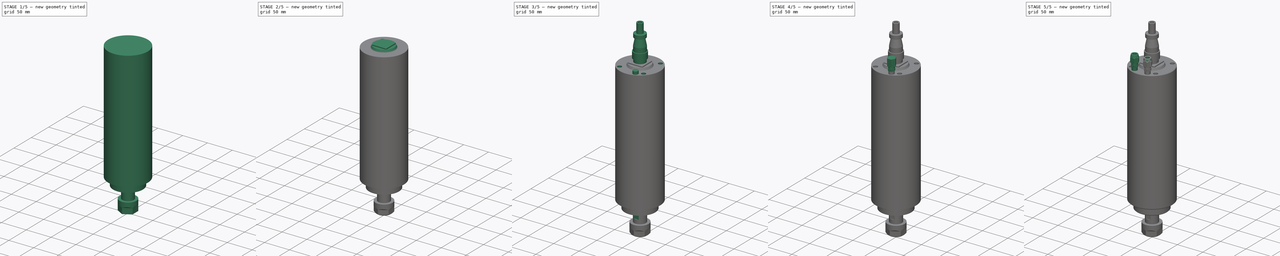
[diagram: build sequence overview — one tinted view per stage of 5, left to right]
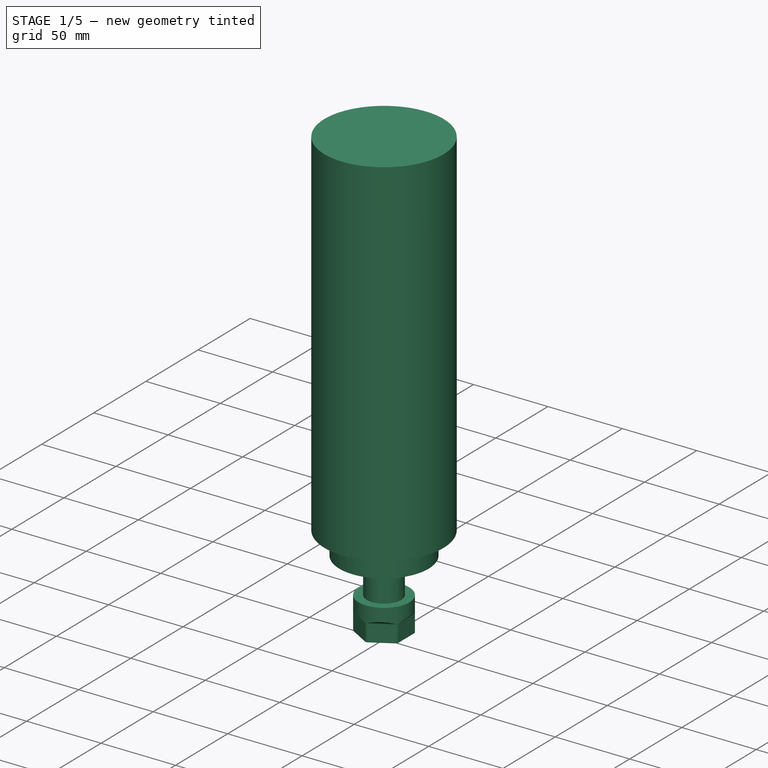
[diagram: stage 1 of 5 — iso view after this stage's code; geometry added in this stage tinted green]
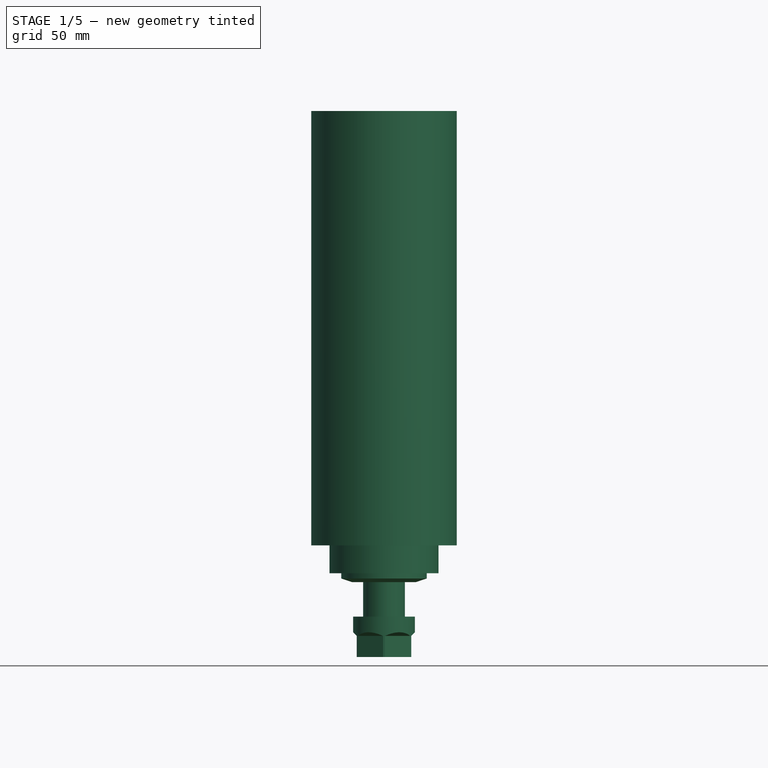
[diagram: stage 1 of 5 — front view after this stage's code; geometry added in this stage tinted green]
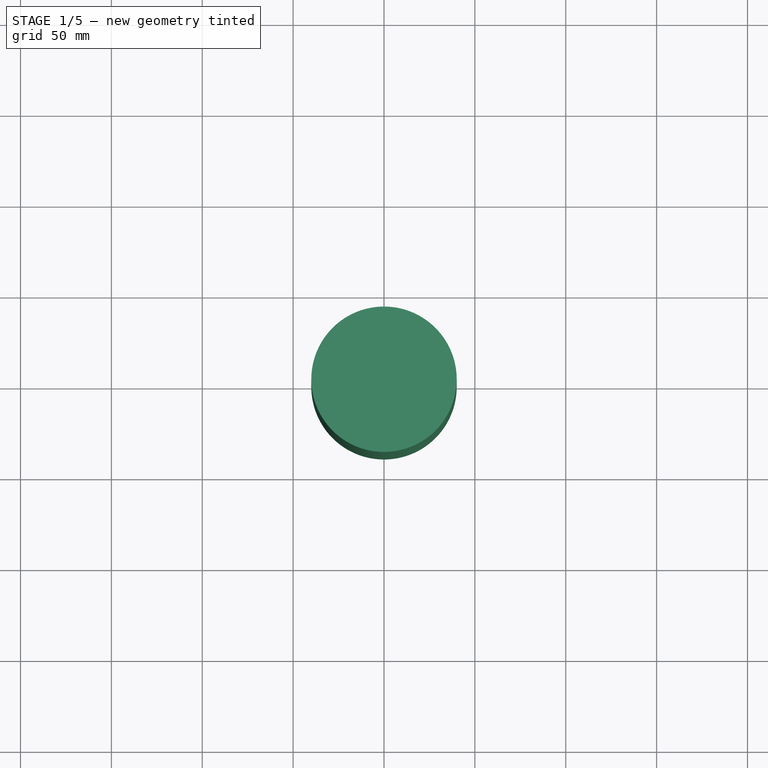
[diagram: stage 1 of 5 — top view after this stage's code; geometry added in this stage tinted green]
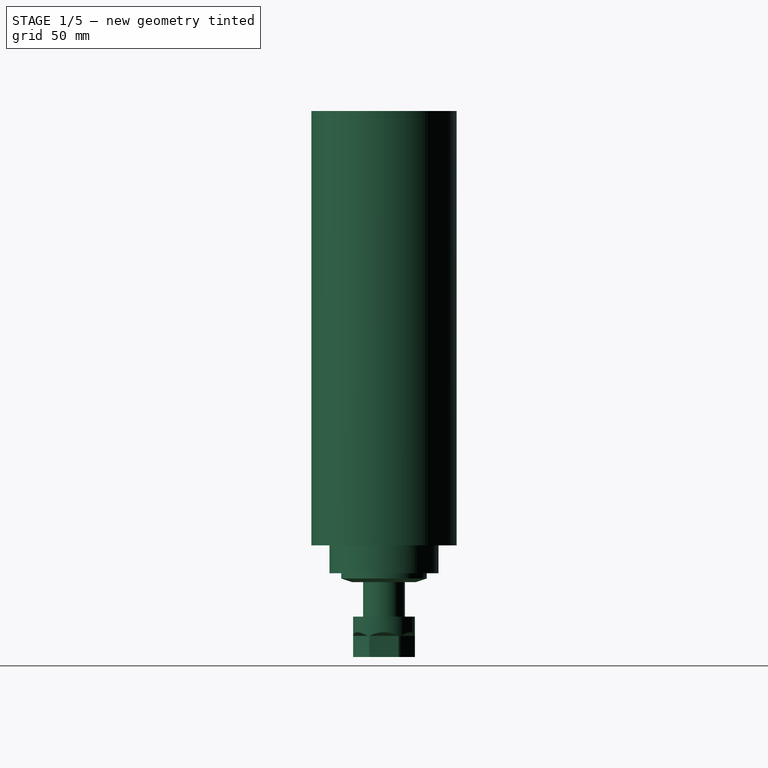
[diagram: stage 1 of 5 — right view after this stage's code; geometry added in this stage tinted green]
FCSTD DOCUMENT  (FreeCAD 2022.111R30764 (Git))
Label: Spindle
License: All rights reserved
LicenseURL: http://en.wikipedia.org/wiki/All_rights_reserved
objects: Sketcher::SketchObject×14, PartDesign::Pad×6, PartDesign::Pocket×4, PartDesign::Revolution×2, PartDesign::Chamfer×2, PartDesign::Groove×2, PartDesign::PolarPattern×1, PartDesign::Plane×1, PartDesign::Mirrored×1, PartDesign::Body×1
note: 70 computed .brp shape members not serialized (recipe doc carries the construction recipe); baked Part::Feature solids carry a one-line shape summary decoded from their .brp

FEATURE [Sketcher::SketchObject] Sketch
  FullyConstrained = false
  MapMode = 5
  Placement = pos=(0,0,0) rot=(1,0,0;1.5708rad)
  Support = -> [XZ_Plane]
  TreeRank = 0
  sketch-geometry (19):
    g0: LineSegment StartX=0 StartY=0 StartZ=0 EndX=-40 EndY=0 EndZ=0
    g1: LineSegment StartX=-40 StartY=0 StartZ=0 EndX=-40 EndY=-239 EndZ=0
    g2: LineSegment StartX=0 StartY=-239 StartZ=0 EndX=0 EndY=0 EndZ=0
    g3: LineSegment StartX=-30 StartY=-239 StartZ=0 EndX=-30 EndY=-254.3 EndZ=0
    g4: LineSegment StartX=-30 StartY=-254.3 StartZ=0 EndX=-23.5 EndY=-254.3 EndZ=0
    g5: LineSegment StartX=-23.5 StartY=-254.3 StartZ=0 EndX=-23.5 EndY=-259.2 EndZ=0
    g6: LineSegment StartX=-23.5 StartY=-259.2 StartZ=0 EndX=-11.5 EndY=-259.2 EndZ=0
    g7: LineSegment StartX=-11.5 StartY=-259.2 StartZ=0 EndX=-11.5 EndY=-278.2 EndZ=0
    g8: LineSegment [constr] StartX=-11.5 StartY=-278.2 StartZ=0 EndX=0 EndY=-278.2 EndZ=0
    g9: LineSegment StartX=0 StartY=-278.2 StartZ=0 EndX=0 EndY=-239 EndZ=0
    g10: LineSegment StartX=-40 StartY=-239 StartZ=0 EndX=-30 EndY=-239 EndZ=0
    g11: LineSegment [constr] StartX=0 StartY=-239 StartZ=0 EndX=-30 EndY=-239 EndZ=0
    g12: LineSegment StartX=-11.5 StartY=-278.2 StartZ=0 EndX=-17 EndY=-278.2 EndZ=0
    g13: LineSegment StartX=-17 StartY=-278.2 StartZ=0 EndX=-17 EndY=-300.4 EndZ=0
    g14: LineSegment [constr] StartX=-17 StartY=-300.4 StartZ=0 EndX=0 EndY=-300.4 EndZ=0
    g15: LineSegment StartX=-17 StartY=-300.4 StartZ=0 EndX=-7.8 EndY=-300.4 EndZ=0
    g16: LineSegment StartX=-7.8 StartY=-300.4 StartZ=0 EndX=-7.8 EndY=-292.978 EndZ=0
    g17: LineSegment StartX=-7.8 StartY=-292.978 StartZ=0 EndX=0 EndY=-292.978 EndZ=0
    g18: LineSegment StartX=0 StartY=-278.2 StartZ=0 EndX=0 EndY=-292.978 EndZ=0
  constraints (54):
    c: Coincident(g0,g1)
    c: Coincident(g2,g0)
    c: Horizontal(g0)
    c: Vertical(g1)
    c: Vertical(g2)
    c: PointOnObject(g0,g-2)
    c: DistanceY(g2,g2) = 239
    c: DistanceX(g0,g0) = 40
    c: Vertical(g3)
    c: Coincident(g4,g3)
    c: Horizontal(g4)
    c: Coincident(g5,g4)
    c: Vertical(g5)
    c: Horizontal(g6)
    c: Vertical(g7)
    c: PointOnObject(g8,g-2)
    c: Horizontal(g8)
    c: Coincident(g9,g8)
    c: Coincident(g9,g2)
    c: Coincident(g10,g1)
    c: Coincident(g10,g3)
    c: Horizontal(g10)
    c: PointOnObject(g0,g-1)
    c: Coincident(g7,g8)
    c: Coincident(g6,g7)
    c: Coincident(g5,g6)
    c: DistanceY(g3,g3) = 15.3
    c: DistanceY(g5,g5) = 4.9
    c: Coincident(g11,g2)
    c: Coincident(g11,g3)
    c: Horizontal(g11)
    c: DistanceX(g8,g8) = 11.5
    c: DistanceY(g7,g7) = 19
    c: DistanceX(g11,g11) = 30
    c: Distance(g4,g9) = 23.5
    c: Coincident(g12,g7)
    c: Horizontal(g12)
    c: Coincident(g13,g12)
    c: Vertical(g13)
    c: PointOnObject(g14,g-2)
    c: Horizontal(g14)
    c: Coincident(g13,g14)
    c: DistanceY(g13,g13) = 22.2
    c: DistanceX(g14,g14) = 17
    c: Coincident(g15,g13)
    c: PointOnObject(g15,g14)
    c: Coincident(g16,g15)
    c: Vertical(g16)
    c: Coincident(g17,g16)
    c: Horizontal(g17)
    c: Coincident(g18,g9)
    c: Coincident(g18,g17)
    c: Vertical(g18)
    c: DistanceX(g17,g17) = 7.8
FEATURE [PartDesign::Revolution] Revolution
  AddSubType = 0
  Angle = 360
  Axis = (0,-2e-16,1)
  Base = (0,0,0)
  ClaimChildren = false
  Fit = 0
  FitJoin = 0
  InnerFit = 0
  InnerFitJoin = 0
  NewSolid = false
  Placement = pos=(0,0,0) rot=(1,0,0;1.5708rad)
  Profile = -> Sketch
  ReferenceAxis = -> Sketch [V_Axis]
  Suppress = false
  TreeRank = 0
  _ProfileBasedVersion = 0
FEATURE [PartDesign::Chamfer] Chamfer
  AddSubType = 0
  Angle = 45
  Base = -> Revolution [Edge8]
  BaseFeature = -> Revolution
  ChamferType = 1
  FlipDirection = false
  NewSolid = false
  Placement = pos=(0,0,0) rot=(1,0,0;1.5708rad)
  Size = 2
  Size2 = 6
  SupportTransform = false
  Suppress = false
  TreeRank = 0
FEATURE [Sketcher::SketchObject] Sketch001
  ExternalGeometry = -> [Chamfer]
  FullyConstrained = true
  MapMode = 5
  Placement = pos=(0,0,0) rot=(1,0,0;1.5708rad)
  Support = -> [XZ_Plane]
  TreeRank = 0
  sketch-geometry (4):
    g0: LineSegment StartX=-15 StartY=-300.4 StartZ=0 EndX=-15 EndY=-288.8 EndZ=0
    g1: LineSegment StartX=-15 StartY=-288.8 StartZ=0 EndX=-20 EndY=-283.8 EndZ=0
    g2: LineSegment StartX=-20 StartY=-283.8 StartZ=0 EndX=-20 EndY=-300.4 EndZ=0
    g3: LineSegment StartX=-20 StartY=-300.4 StartZ=0 EndX=-15 EndY=-300.4 EndZ=0
  constraints (12):
    c: Vertical(g0)
    c: PointOnObject(g0,g-3)
    c: Coincident(g1,g0)
    c: Coincident(g2,g1)
    c: Vertical(g2)
    c: Coincident(g3,g2)
    c: Coincident(g3,g0)
    c: Horizontal(g3)
    c: Angle(g1,g0) = 2.35619
    c: DistanceY(g0,g0) = 11.6
    c: DistanceX(g3,g3) = 5
    c: DistanceX(g-2,g0) = -15
FEATURE [PartDesign::Pocket] Pocket
  AddSubType = 1
  BaseFeature = -> Chamfer
  CheckUpToFaceLimits = true
  ClaimChildren = false
  Fit = 0
  FitJoin = 0
  InnerFit = 0
  InnerFitJoin = 0
  InnerTaperAngle = 0
  InnerTaperAngleRev = 0
  Length = 100
  Length2 = 100
  NewSolid = false
  Placement = pos=(0,0,0) rot=(1,0,0;1.5708rad)
  Profile = -> Sketch001
  Suppress = false
  TreeRank = 0
  Type = 4
  _ProfileBasedVersion = 0
  _Version = 0
FEATURE [PartDesign::PolarPattern] PolarPattern
  AddSubType = 0
  Angle = 360
  Axis = -> Sketch001 [V_Axis]
  BaseFeature = -> Pocket
  CopyShape = true
  NewSolid = false
  Occurrences = 6
  OriginalSubs = -> [Pocket]
  Originals = -> [Pocket]
  ParallelTransform = true
  Placement = pos=(0,0,0) rot=(1,0,0;1.5708rad)
  SubTransform = true
  Suppress = false
  TreeRank = 0
  _Version = 0
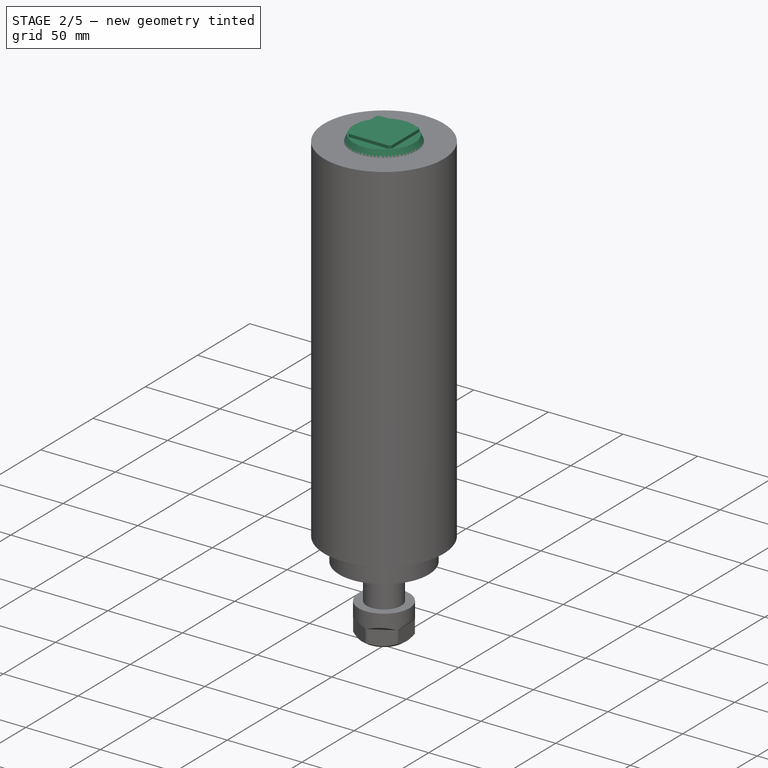
[diagram: stage 2 of 5 — iso view after this stage's code; geometry added in this stage tinted green]
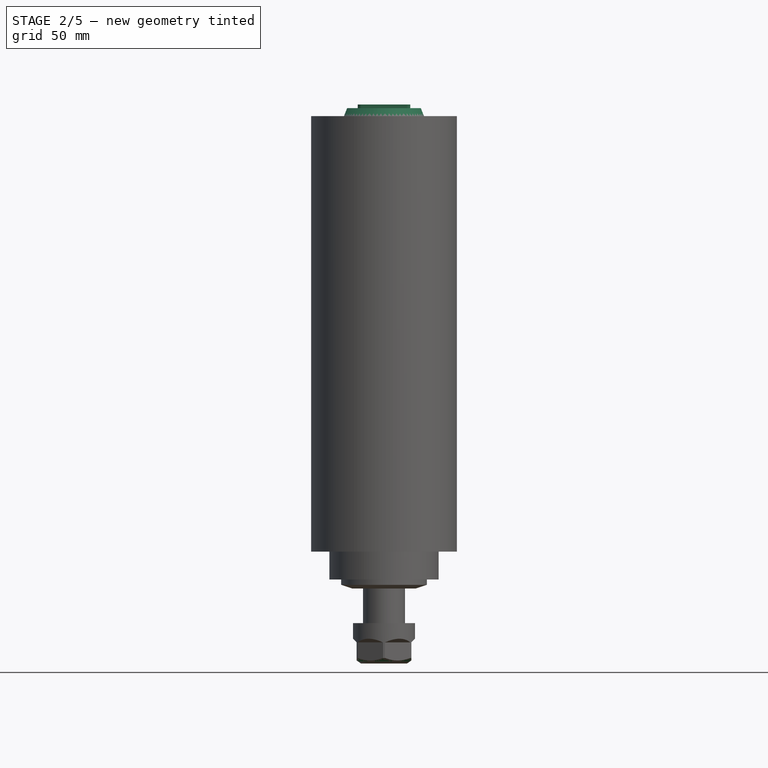
[diagram: stage 2 of 5 — front view after this stage's code; geometry added in this stage tinted green]
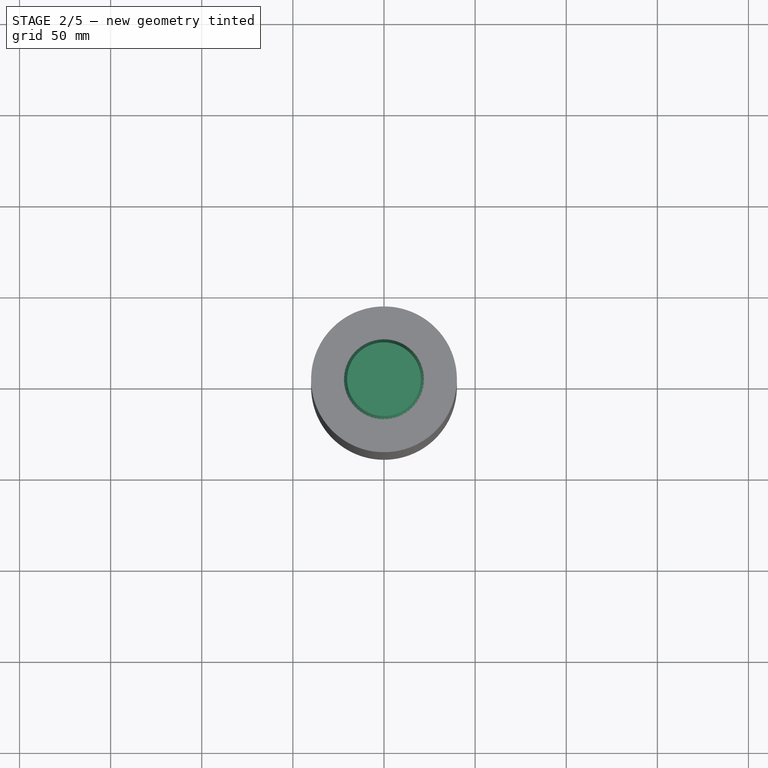
[diagram: stage 2 of 5 — top view after this stage's code; geometry added in this stage tinted green]
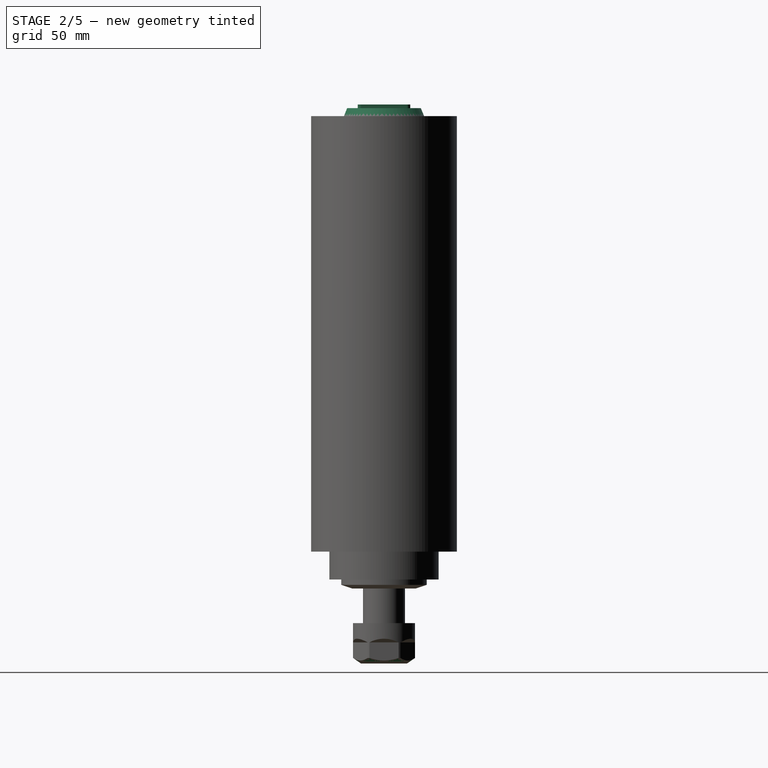
[diagram: stage 2 of 5 — right view after this stage's code; geometry added in this stage tinted green]
FEATURE [Sketcher::SketchObject] Sketch002
  FullyConstrained = false
  MapMode = 5
  Placement = pos=(0,0,0) rot=(1,0,0;1.5708rad)
  Support = -> [XZ_Plane]
  TreeRank = 0
  sketch-geometry (3):
    g0: LineSegment StartX=-11.9303 StartY=-300.872 StartZ=0 EndX=-17.331 EndY=-297.109 EndZ=0
    g1: LineSegment StartX=-17.331 StartY=-297.109 StartZ=0 EndX=-17.331 EndY=-300.872 EndZ=0
    g2: LineSegment StartX=-17.331 StartY=-300.872 StartZ=0 EndX=-11.9303 EndY=-300.872 EndZ=0
  constraints (5):
    c: Coincident(g1,g0)
    c: Vertical(g1)
    c: Horizontal(g2)
    c: Coincident(g1,g2)
    c: Coincident(g0,g2)
FEATURE [PartDesign::Groove] Groove
  AddSubType = 1
  Angle = 360
  Axis = (0,-2e-16,1)
  Base = (0,0,0)
  BaseFeature = -> PolarPattern
  ClaimChildren = false
  Fit = 0
  FitJoin = 0
  InnerFit = 0
  InnerFitJoin = 0
  NewSolid = false
  Placement = pos=(0,0,0) rot=(1,0,0;1.5708rad)
  Profile = -> Sketch002
  ReferenceAxis = -> Sketch002 [V_Axis]
  Reversed = true
  Suppress = false
  TreeRank = 0
  _ProfileBasedVersion = 0
FEATURE [Sketcher::SketchObject] Sketch003
  FullyConstrained = true
  MapMode = 5
  Placement = pos=(0,0,0) rot=(0,0,1;3.14159rad)
  Support = -> [Groove]
  TreeRank = 1
  sketch-geometry (1):
    g0: Circle CenterX=0 CenterY=0 CenterZ=0 NormalX=0 NormalY=0 NormalZ=1 AngleXU=0 Radius=22
  constraints (2):
    c: Coincident(g-1,g0)
    c: Diameter(g0) = 44
FEATURE [PartDesign::Pad] Pad
  AddSubType = 0
  AlongSketchNormal = false
  BaseFeature = -> Groove
  CheckUpToFaceLimits = true
  ClaimChildren = false
  Direction = (0,0,1)
  Fit = 0
  FitJoin = 0
  InnerFit = 0
  InnerFitJoin = 0
  InnerTaperAngle = 0
  InnerTaperAngleRev = 0
  Length = 4.4
  Length2 = 100
  Linearize = true
  NewSolid = false
  Placement = pos=(0,0,0) rot=(1,0,0;1.5708rad)
  Profile = -> Sketch003
  Suppress = false
  TaperAngle = -22
  TreeRank = 2
  Type = 0
  UsePipeForDraft = true
  _ProfileBasedVersion = 1
FEATURE [Sketcher::SketchObject] Sketch004
  FullyConstrained = true
  MapMode = 5
  Placement = pos=(0,1e-15,4.4) rot=(0,0,1;3.14159rad)
  Support = -> [Pad]
  TreeRank = 3
  sketch-geometry (10):
    g0: ArcOfCircle CenterX=-12.4 CenterY=12.4 CenterZ=0 NormalX=0 NormalY=0 NormalZ=1 AngleXU=0 Radius=2 StartAngle=1.5708 EndAngle=3.14159
    g1: LineSegment StartX=-12.4 StartY=14.4 StartZ=0 EndX=12.4 EndY=14.4 EndZ=0
    g2: ArcOfCircle CenterX=12.4 CenterY=12.4 CenterZ=0 NormalX=0 NormalY=0 NormalZ=1 AngleXU=0 Radius=2 StartAngle=4e-16 EndAngle=1.5708
    g3: LineSegment StartX=14.4 StartY=12.4 StartZ=0 EndX=14.4 EndY=-12.4 EndZ=0
    g4: ArcOfCircle CenterX=12.4 CenterY=-12.4 CenterZ=0 NormalX=0 NormalY=0 NormalZ=1 AngleXU=0 Radius=2 StartAngle=4.71239 EndAngle=6.28319
    g5: LineSegment StartX=12.4 StartY=-14.4 StartZ=0 EndX=-12.4 EndY=-14.4 EndZ=0
    g6: ArcOfCircle CenterX=-12.4 CenterY=-12.4 CenterZ=0 NormalX=0 NormalY=0 NormalZ=1 AngleXU=0 Radius=2 StartAngle=3.14159 EndAngle=4.71239
    g7: LineSegment StartX=-14.4 StartY=-12.4 StartZ=0 EndX=-14.4 EndY=12.4 EndZ=0
    g8: GeomPoint [constr] X=-14.4 Y=14.4 Z=0
    g9: GeomPoint [constr] X=14.4 Y=-14.4 Z=0
  constraints (23):
    c: Tangent(g0,g1) = 1.5708
    c: Tangent(g1,g2) = 1.5708
    c: Tangent(g2,g3) = 1.5708
    c: Tangent(g3,g4) = 1.5708
    c: Tangent(g4,g5) = 1.5708
    c: Tangent(g5,g6) = 1.5708
    c: Tangent(g6,g7) = 1.5708
    c: Tangent(g7,g0) = 1.5708
    c: Horizontal(g1)
    c: Horizontal(g5)
    c: Vertical(g3)
    c: Vertical(g7)
    c: Equal(g0,g2)
    c: Equal(g2,g4)
    c: Equal(g4,g6)
    c: PointOnObject(g8,g1)
    c: PointOnObject(g8,g7)
    c: PointOnObject(g9,g3)
    c: PointOnObject(g9,g5)
    c: Radius(g0) = 2
    c: Symmetric(g2,g6,g-1)
    c: DistanceX(g0,g2) = 28.8
    c: Equal(g7,g1)
FEATURE [PartDesign::Pad] Pad001
  AddSubType = 0
  AlongSketchNormal = false
  BaseFeature = -> Pad
  CheckUpToFaceLimits = true
  ClaimChildren = false
  Direction = (0,0,1)
  Fit = 0
  FitJoin = 0
  InnerFit = 0
  InnerFitJoin = 0
  InnerTaperAngle = 0
  InnerTaperAngleRev = 0
  Length = 2
  Length2 = 100
  Linearize = true
  NewSolid = false
  Placement = pos=(0,0,0) rot=(1,0,0;1.5708rad)
  Profile = -> Sketch004
  Suppress = false
  TreeRank = 4
  Type = 0
  _ProfileBasedVersion = 1
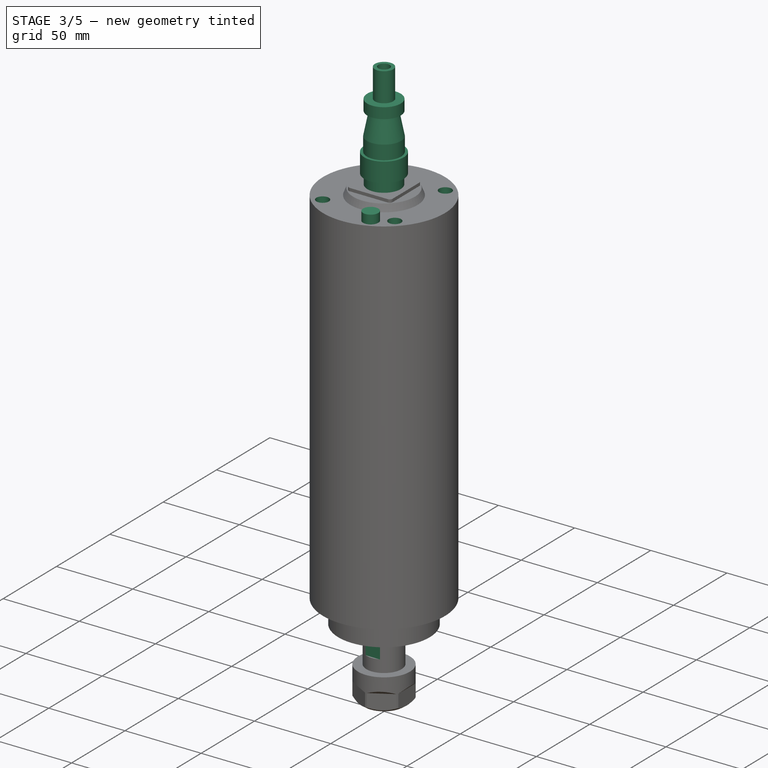
[diagram: stage 3 of 5 — iso view after this stage's code; geometry added in this stage tinted green]
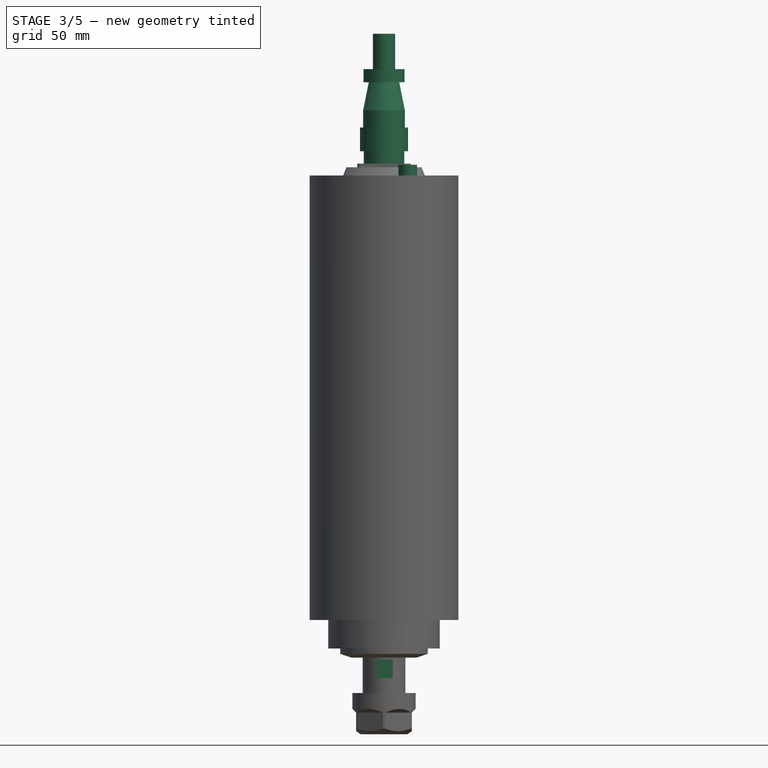
[diagram: stage 3 of 5 — front view after this stage's code; geometry added in this stage tinted green]
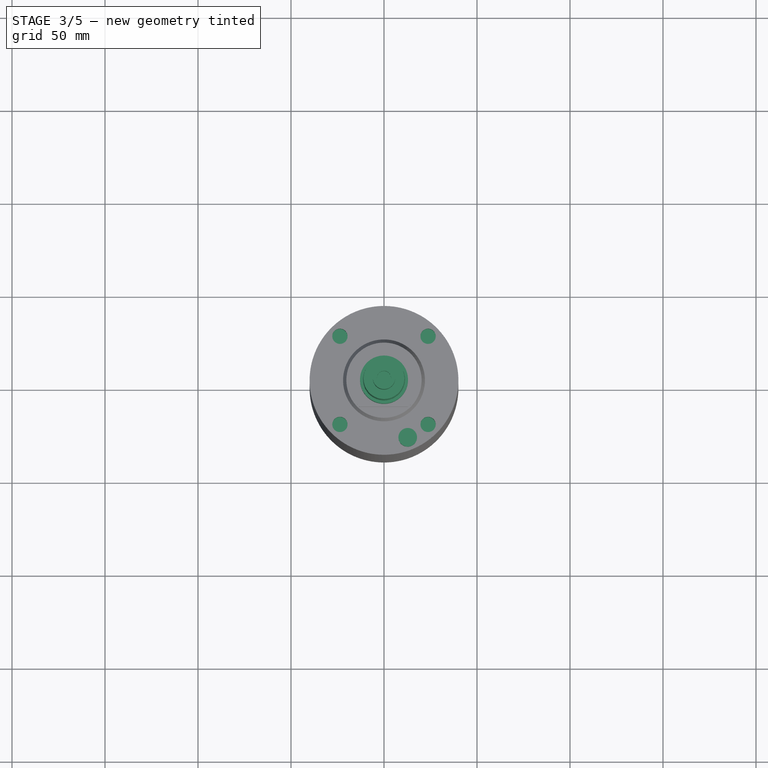
[diagram: stage 3 of 5 — top view after this stage's code; geometry added in this stage tinted green]
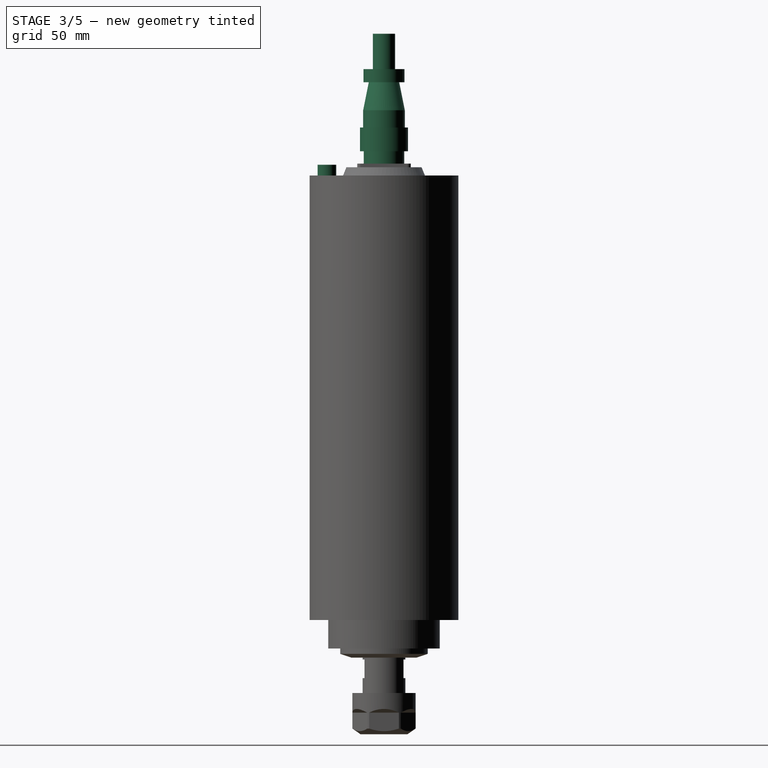
[diagram: stage 3 of 5 — right view after this stage's code; geometry added in this stage tinted green]
FEATURE [Sketcher::SketchObject] Sketch005
  ExternalGeometry = -> [Pad001]
  FullyConstrained = true
  MapMode = 5
  Placement = pos=(0,0,0) rot=(1,0,0;1.5708rad)
  Support = -> [XZ_Plane]
  TreeRank = 5
  sketch-geometry (15):
    g0: LineSegment StartX=0 StartY=6.4 StartZ=0 EndX=-10.9 EndY=6.4 EndZ=0
    g1: LineSegment StartX=-10.9 StartY=6.4 StartZ=0 EndX=-10.9 EndY=13 EndZ=0
    g2: LineSegment StartX=-10.9 StartY=13 StartZ=0 EndX=-12.9 EndY=13 EndZ=0
    g3: LineSegment StartX=-12.9 StartY=13 StartZ=0 EndX=-12.9 EndY=25.8 EndZ=0
    g4: LineSegment StartX=-12.9 StartY=25.8 StartZ=0 EndX=-11.2 EndY=25.8 EndZ=0
    g5: LineSegment StartX=-11.2 StartY=25.8 StartZ=0 EndX=-11.2 EndY=35.1 EndZ=0
    g6: LineSegment StartX=-11.2 StartY=35.1 StartZ=0 EndX=-8.2 EndY=50.1 EndZ=0
    g7: LineSegment StartX=-8.2 StartY=50.1 StartZ=0 EndX=-11 EndY=50.1 EndZ=0
    g8: LineSegment StartX=-11 StartY=50.1 StartZ=0 EndX=-11 EndY=57.2 EndZ=0
    g9: LineSegment StartX=-11 StartY=57.2 StartZ=0 EndX=-6 EndY=57.2 EndZ=0
    g10: LineSegment StartX=-6 StartY=57.2 StartZ=0 EndX=-6 EndY=76.2 EndZ=0
    g11: LineSegment StartX=-6 StartY=76.2 StartZ=0 EndX=-3.8 EndY=76.2 EndZ=0
    g12: LineSegment StartX=-3.8 StartY=76.2 StartZ=0 EndX=-3.8 EndY=67.6 EndZ=0
    g13: LineSegment StartX=-3.8 StartY=67.6 StartZ=0 EndX=0 EndY=67.6 EndZ=0
    g14: LineSegment StartX=0 StartY=67.6 StartZ=0 EndX=0 EndY=6.4 EndZ=0
  constraints (45):
    c: PointOnObject(g0,g-2)
    c: Horizontal(g0)
    c: Coincident(g1,g0)
    c: Vertical(g1)
    c: Coincident(g2,g1)
    c: Horizontal(g2)
    c: Coincident(g3,g2)
    c: Vertical(g3)
    c: Horizontal(g4)
    c: Coincident(g5,g4)
    c: Vertical(g5)
    c: Coincident(g6,g5)
    c: Coincident(g7,g6)
    c: Horizontal(g7)
    c: Coincident(g8,g7)
    c: Vertical(g8)
    c: Coincident(g9,g8)
    c: Horizontal(g9)
    c: Coincident(g10,g9)
    c: Vertical(g10)
    c: Horizontal(g11)
    c: Vertical(g12)
    c: Coincident(g13,g12)
    c: PointOnObject(g13,g-2)
    c: Horizontal(g13)
    c: Coincident(g4,g3)
    c: DistanceY(g1,g1) = 6.6
    c: DistanceY(g3,g3) = 12.8
    c: DistanceX(g0,g0) = 10.9
    c: DistanceX(g2,g0) = 12.9
    c: DistanceY(g5,g5) = 9.3
    c: DistanceX(g6,g0) = 8.2
    c: DistanceY(g5,g6) = 15
    c: DistanceX(g7,g0) = 11
    c: DistanceY(g8,g8) = 7.1
    c: DistanceY(g10,g10) = 19
    c: Coincident(g10,g11)
    c: Coincident(g11,g12)
    c: DistanceX(g10,g13) = 6
    c: DistanceX(g13,g13) = 3.8
    c: DistanceY(g12,g12) = 8.6
    c: DistanceX(g4,g0) = 11.2
    c: Coincident(g14,g0)
    c: Coincident(g13,g14)
    c: PointOnObject(g0,g-3)
FEATURE [PartDesign::Revolution] Revolution001
  AddSubType = 0
  Angle = 360
  Axis = (-3e-16,3e-16,1)
  Base = (0,0,0)
  BaseFeature = -> Pad001
  ClaimChildren = false
  Fit = 0
  FitJoin = 0
  InnerFit = 0
  InnerFitJoin = 0
  Linearize = true
  NewSolid = false
  Placement = pos=(0,0,0) rot=(1,0,0;1.5708rad)
  Profile = -> Sketch005
  ReferenceAxis = -> Z_Axis
  Suppress = false
  TreeRank = 6
  _ProfileBasedVersion = 1
FEATURE [Sketcher::SketchObject] Sketch006
  ExternalGeometry = -> [Revolution001]
  FullyConstrained = true
  MapMode = 5
  Placement = pos=(0,0,0) rot=(0.57735,0.57735,0.57735;2.0944rad)
  Support = -> [YZ_Plane]
  TreeRank = 7
  sketch-geometry (8):
    g0: LineSegment StartX=-20.5 StartY=-260.2 StartZ=0 EndX=-10.5 EndY=-260.2 EndZ=0
    g1: LineSegment StartX=-10.5 StartY=-260.2 StartZ=0 EndX=-10.5 EndY=-270.2 EndZ=0
    g2: LineSegment StartX=-10.5 StartY=-270.2 StartZ=0 EndX=-20.5 EndY=-270.2 EndZ=0
    g3: LineSegment StartX=-20.5 StartY=-270.2 StartZ=0 EndX=-20.5 EndY=-260.2 EndZ=0
    g4: LineSegment StartX=20.5 StartY=-260.2 StartZ=0 EndX=10.5 EndY=-260.2 EndZ=0
    g5: LineSegment StartX=10.5 StartY=-260.2 StartZ=0 EndX=10.5 EndY=-270.2 EndZ=0
    g6: LineSegment StartX=10.5 StartY=-270.2 StartZ=0 EndX=20.5 EndY=-270.2 EndZ=0
    g7: LineSegment StartX=20.5 StartY=-270.2 StartZ=0 EndX=20.5 EndY=-260.2 EndZ=0
  constraints (20):
    c: Coincident(g0,g1)
    c: Coincident(g1,g2)
    c: Coincident(g2,g3)
    c: Coincident(g3,g0)
    c: Horizontal(g0)
    c: Horizontal(g2)
    c: Vertical(g1)
    c: Vertical(g3)
    c: DistanceX(g0,g-1) = 10.5
    c: DistanceX(g0,g0) = 10
    c: DistanceY(g3,g3) = 10
    c: Coincident(g4,g5)
    c: Coincident(g5,g6)
    c: Coincident(g6,g7)
    c: Coincident(g7,g4)
    c: Symmetric(g0,g4,g-2)
    c: Symmetric(g1,g5,g-2)
    c: Symmetric(g0,g4,g-2)
    c: Symmetric(g2,g6,g-2)
    c: DistanceY(g0,g-3) = 1
FEATURE [PartDesign::Pocket] Pocket001
  AddSubType = 1
  BaseFeature = -> Revolution001
  CheckUpToFaceLimits = true
  ClaimChildren = false
  Fit = 0
  FitJoin = 0
  InnerFit = 0
  InnerFitJoin = 0
  InnerTaperAngle = 0
  InnerTaperAngleRev = 0
  Length = 32
  Length2 = 100
  Linearize = true
  Midplane = true
  NewSolid = false
  Placement = pos=(0,0,0) rot=(1,0,0;1.5708rad)
  Profile = -> Sketch006
  Suppress = false
  TreeRank = 8
  Type = 0
  _ProfileBasedVersion = 1
  _Version = 1
FEATURE [Sketcher::SketchObject] Sketch007
  FullyConstrained = true
  MapMode = 5
  Placement = pos=(0,0,0) rot=(0,0,1;3.14159rad)
  Support = -> [Pocket001]
  TreeRank = 9
  sketch-geometry (9):
    g0: LineSegment [constr] StartX=23.7 StartY=-23.7 StartZ=0 EndX=23.7 EndY=23.7 EndZ=0
    g1: LineSegment [constr] StartX=23.7 StartY=23.7 StartZ=0 EndX=-23.7 EndY=23.7 EndZ=0
    g2: LineSegment [constr] StartX=-23.7 StartY=23.7 StartZ=0 EndX=-23.7 EndY=-23.7 EndZ=0
    g3: LineSegment [constr] StartX=-23.7 StartY=-23.7 StartZ=0 EndX=23.7 EndY=-23.7 EndZ=0
    g4: GeomPoint [constr] X=0 Y=0 Z=0
    g5: Circle CenterX=-23.7 CenterY=23.7 CenterZ=0 NormalX=0 NormalY=0 NormalZ=1 AngleXU=0 Radius=4.1
    g6: Circle CenterX=23.7 CenterY=23.7 CenterZ=0 NormalX=0 NormalY=0 NormalZ=1 AngleXU=0 Radius=4.1
    g7: Circle CenterX=23.7 CenterY=-23.7 CenterZ=0 NormalX=0 NormalY=0 NormalZ=1 AngleXU=0 Radius=4.1
    g8: Circle CenterX=-23.7 CenterY=-23.7 CenterZ=0 NormalX=0 NormalY=0 NormalZ=1 AngleXU=0 Radius=4.1
  constraints (20):
    c: Coincident(g0,g1)
    c: Coincident(g1,g2)
    c: Coincident(g2,g3)
    c: Coincident(g3,g0)
    c: Horizontal(g1)
    c: Horizontal(g3)
    c: Vertical(g0)
    c: Vertical(g2)
    c: Symmetric(g1,g0,g4)
    c: Coincident(g4,g-1)
    c: Equal(g1,g2)
    c: DistanceX(g1,g1) = 47.4
    c: Coincident(g5,g1)
    c: Coincident(g6,g0)
    c: Coincident(g7,g0)
    c: Coincident(g8,g2)
    c: Equal(g8,g7)
    c: Equal(g7,g6)
    c: Equal(g6,g5)
    c: Diameter(g5) = 8.2
FEATURE [PartDesign::Pocket] Pocket002
  AddSubType = 1
  BaseFeature = -> Pocket001
  CheckUpToFaceLimits = true
  ClaimChildren = false
  Fit = 0
  FitJoin = 0
  InnerFit = 0
  InnerFitJoin = 0
  InnerTaperAngle = 0
  InnerTaperAngleRev = 0
  Length = 10
  Length2 = 100
  Linearize = true
  NewSolid = false
  Placement = pos=(0,0,0) rot=(1,0,0;1.5708rad)
  Profile = -> Sketch007
  Suppress = false
  TreeRank = 10
  Type = 0
  _ProfileBasedVersion = 1
  _Version = 1
FEATURE [Sketcher::SketchObject] Sketch008
  FullyConstrained = true
  MapMode = 5
  Placement = pos=(0,0,0) rot=(0,0,1;3.14159rad)
  Support = -> [Pocket002]
  TreeRank = 11
  sketch-geometry (1):
    g0: Circle CenterX=-12.75 CenterY=30.7 CenterZ=0 NormalX=0 NormalY=0 NormalZ=1 AngleXU=0 Radius=5
  constraints (3):
    c: Diameter(g0) = 10
    c: DistanceX(g0,g-1) = 12.75
    c: DistanceY(g-1,g0) = 30.7
FEATURE [PartDesign::Pad] Pad002
  AddSubType = 0
  AlongSketchNormal = false
  BaseFeature = -> Pocket002
  CheckUpToFaceLimits = true
  ClaimChildren = false
  Direction = (0,0,1)
  Fit = 0
  FitJoin = 0
  InnerFit = 0
  InnerFitJoin = 0
  InnerTaperAngle = 0
  InnerTaperAngleRev = 0
  Length = 5.8
  Length2 = 100
  Linearize = true
  NewSolid = false
  Placement = pos=(0,0,0) rot=(1,0,0;1.5708rad)
  Profile = -> Sketch008
  Suppress = false
  TreeRank = 12
  Type = 0
  _ProfileBasedVersion = 1
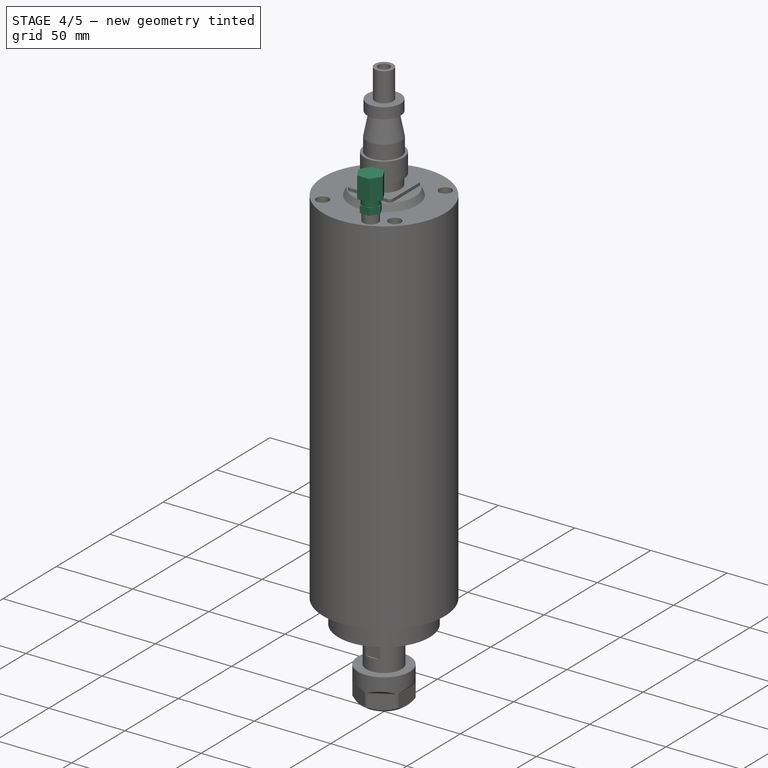
[diagram: stage 4 of 5 — iso view after this stage's code; geometry added in this stage tinted green]
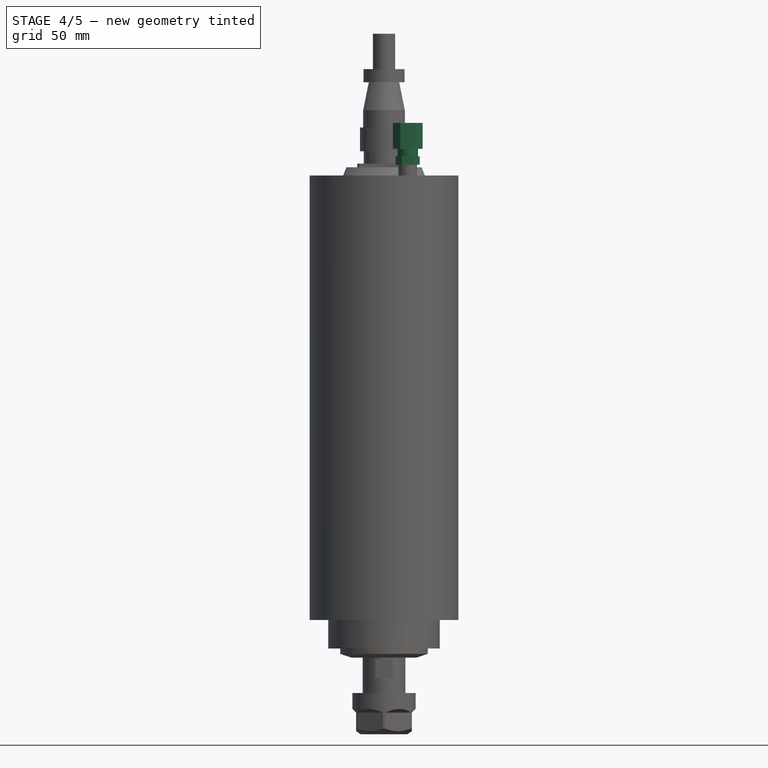
[diagram: stage 4 of 5 — front view after this stage's code; geometry added in this stage tinted green]
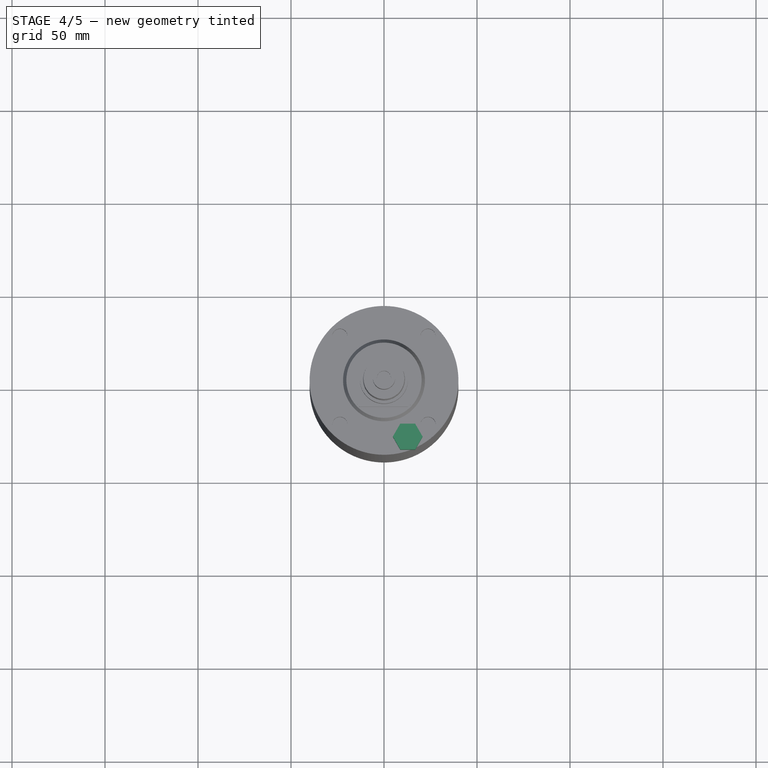
[diagram: stage 4 of 5 — top view after this stage's code; geometry added in this stage tinted green]
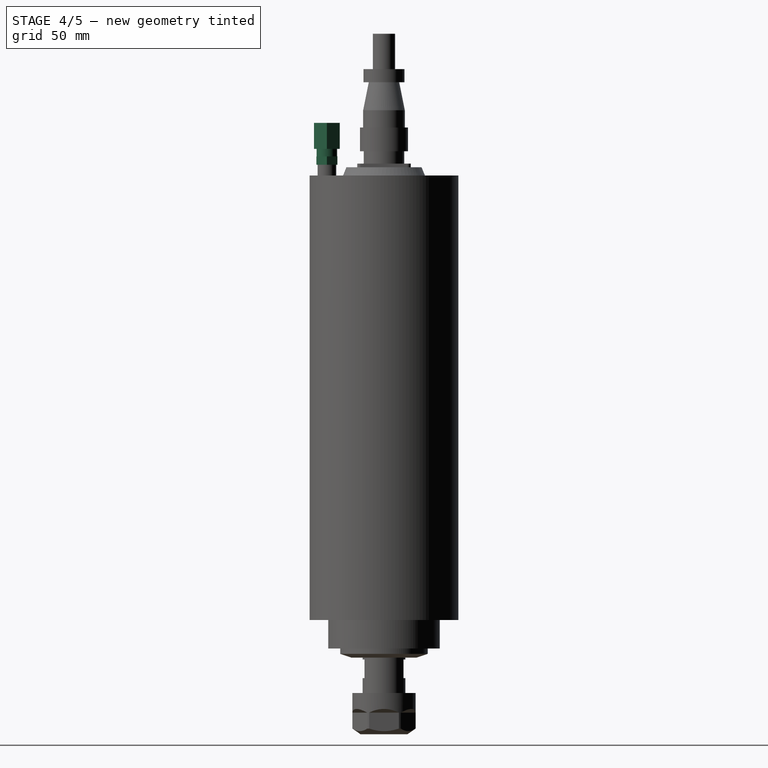
[diagram: stage 4 of 5 — right view after this stage's code; geometry added in this stage tinted green]
FEATURE [Sketcher::SketchObject] Sketch009
  ExternalGeometry = -> [Pad002]
  FullyConstrained = true
  MapMode = 5
  Placement = pos=(0,0,5.8) rot=(0,0,1;3.14159rad)
  Support = -> [Pad002]
  TreeRank = 13
  sketch-geometry (7):
    g0: LineSegment StartX=-9.5 StartY=36.3292 StartZ=0 EndX=-16 EndY=36.3292 EndZ=0
    g1: LineSegment StartX=-16 StartY=36.3292 StartZ=0 EndX=-19.25 EndY=30.7 EndZ=0
    g2: LineSegment StartX=-19.25 StartY=30.7 StartZ=0 EndX=-16 EndY=25.0708 EndZ=0
    g3: LineSegment StartX=-16 StartY=25.0708 StartZ=0 EndX=-9.5 EndY=25.0708 EndZ=0
    g4: LineSegment StartX=-9.5 StartY=25.0708 StartZ=0 EndX=-6.25 EndY=30.7 EndZ=0
    g5: LineSegment StartX=-6.25 StartY=30.7 StartZ=0 EndX=-9.5 EndY=36.3292 EndZ=0
    g6: Circle [constr] CenterX=-12.75 CenterY=30.7 CenterZ=0 NormalX=0 NormalY=0 NormalZ=1 AngleXU=0 Radius=6.5
  constraints (16):
    c: Coincident(g0,g1)
    c: Coincident(g1,g2)
    c: Coincident(g2,g3)
    c: Coincident(g3,g4)
    c: Coincident(g4,g5)
    c: Coincident(g5,g0)
    c: Equal(g0, g1-g5) x5
    c: PointOnObject(g0,g6)
    c: PointOnObject(g1,g6)
    c: PointOnObject(g2,g6)
    c: PointOnObject(g3,g6)
    c: PointOnObject(g4,g6)
    c: PointOnObject(g5,g6)
    c: Coincident(g6,g-3)
    c: Horizontal(g0)
    c: Diameter(g6) = 13
FEATURE [PartDesign::Pad] Pad003
  AddSubType = 0
  AlongSketchNormal = false
  BaseFeature = -> Pad002
  CheckUpToFaceLimits = true
  ClaimChildren = false
  Direction = (0,0,1)
  Fit = 0
  FitJoin = 0
  InnerFit = 0
  InnerFitJoin = 0
  InnerTaperAngle = 0
  InnerTaperAngleRev = 0
  Length = 4.5
  Length2 = 100
  Linearize = true
  NewSolid = false
  Placement = pos=(0,0,0) rot=(1,0,0;1.5708rad)
  Profile = -> Sketch009
  Suppress = false
  TreeRank = 14
  Type = 0
  _ProfileBasedVersion = 1
FEATURE [Sketcher::SketchObject] Sketch010
  ExternalGeometry = -> [Pad003]
  FullyConstrained = true
  MapMode = 5
  Placement = pos=(0,0,10.3) rot=(0,0,1;3.14159rad)
  Support = -> [Pad003]
  TreeRank = 15
  sketch-geometry (1):
    g0: Circle CenterX=-12.75 CenterY=30.7 CenterZ=0 NormalX=0 NormalY=0 NormalZ=1 AngleXU=0 Radius=5.5
  constraints (2):
    c: Coincident(g0,g-3)
    c: Diameter(g0) = 11
FEATURE [PartDesign::Pad] Pad004
  AddSubType = 0
  AlongSketchNormal = false
  BaseFeature = -> Pad003
  CheckUpToFaceLimits = true
  ClaimChildren = false
  Direction = (0,0,1)
  Fit = 0
  FitJoin = 0
  InnerFit = 0
  InnerFitJoin = 0
  InnerTaperAngle = 0
  InnerTaperAngleRev = 0
  Length = 4
  Length2 = 100
  Linearize = true
  NewSolid = false
  Placement = pos=(0,0,0) rot=(1,0,0;1.5708rad)
  Profile = -> Sketch010
  Suppress = false
  TreeRank = 16
  Type = 0
  _ProfileBasedVersion = 1
FEATURE [Sketcher::SketchObject] Sketch011
  ExternalGeometry = -> [Pad004]
  FullyConstrained = true
  MapMode = 5
  Placement = pos=(0,0,14.3) rot=(0,0,1;3.14159rad)
  Support = -> [Pad004]
  TreeRank = 17
  sketch-geometry (7):
    g0: LineSegment StartX=-8.75 StartY=37.6282 StartZ=0 EndX=-16.75 EndY=37.6282 EndZ=0
    g1: LineSegment StartX=-16.75 StartY=37.6282 StartZ=0 EndX=-20.75 EndY=30.7 EndZ=0
    g2: LineSegment StartX=-20.75 StartY=30.7 StartZ=0 EndX=-16.75 EndY=23.7718 EndZ=0
    g3: LineSegment StartX=-16.75 StartY=23.7718 StartZ=0 EndX=-8.75 EndY=23.7718 EndZ=0
    g4: LineSegment StartX=-8.75 StartY=23.7718 StartZ=0 EndX=-4.75 EndY=30.7 EndZ=0
    g5: LineSegment StartX=-4.75 StartY=30.7 StartZ=0 EndX=-8.75 EndY=37.6282 EndZ=0
    g6: Circle [constr] CenterX=-12.75 CenterY=30.7 CenterZ=0 NormalX=0 NormalY=0 NormalZ=1 AngleXU=0 Radius=8
  constraints (16):
    c: Coincident(g0,g1)
    c: Coincident(g1,g2)
    c: Coincident(g2,g3)
    c: Coincident(g3,g4)
    c: Coincident(g4,g5)
    c: Coincident(g5,g0)
    c: Equal(g0, g1-g5) x5
    c: PointOnObject(g0,g6)
    c: PointOnObject(g1,g6)
    c: PointOnObject(g2,g6)
    c: PointOnObject(g3,g6)
    c: PointOnObject(g4,g6)
    c: PointOnObject(g5,g6)
    c: Coincident(g6,g-3)
    c: Diameter(g6) = 16
    c: Horizontal(g0)
FEATURE [PartDesign::Pad] Pad005
  AddSubType = 0
  AlongSketchNormal = false
  BaseFeature = -> Pad004
  CheckUpToFaceLimits = true
  ClaimChildren = false
  Direction = (0,0,1)
  Fit = 0
  FitJoin = 0
  InnerFit = 0
  InnerFitJoin = 0
  InnerTaperAngle = 0
  InnerTaperAngleRev = 0
  Length = 14
  Length2 = 100
  Linearize = true
  NewSolid = false
  Placement = pos=(0,0,0) rot=(1,0,0;1.5708rad)
  Profile = -> Sketch011
  Suppress = false
  TreeRank = 18
  Type = 0
  _ProfileBasedVersion = 1
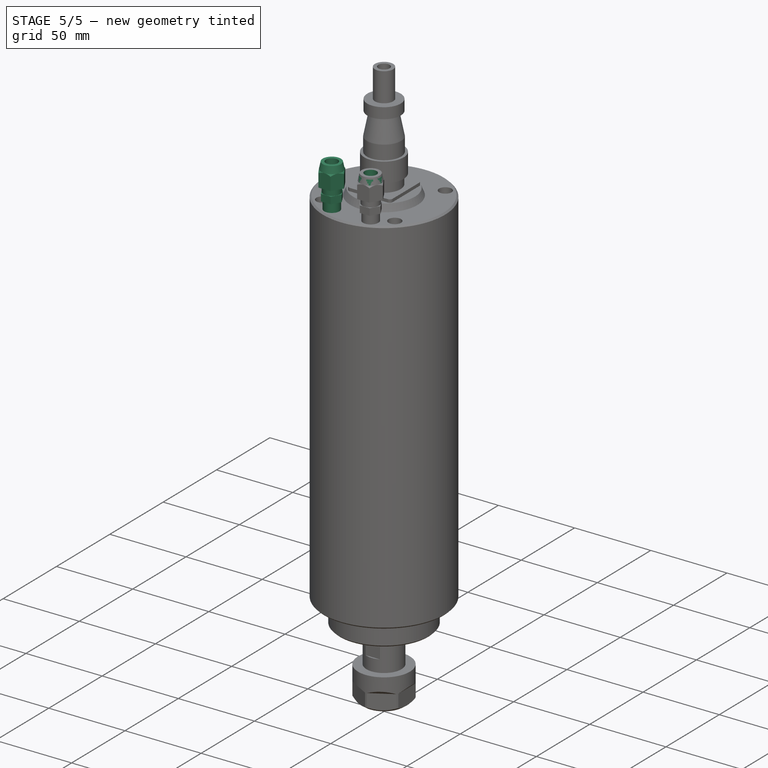
[diagram: stage 5 of 5 — iso view after this stage's code; geometry added in this stage tinted green]
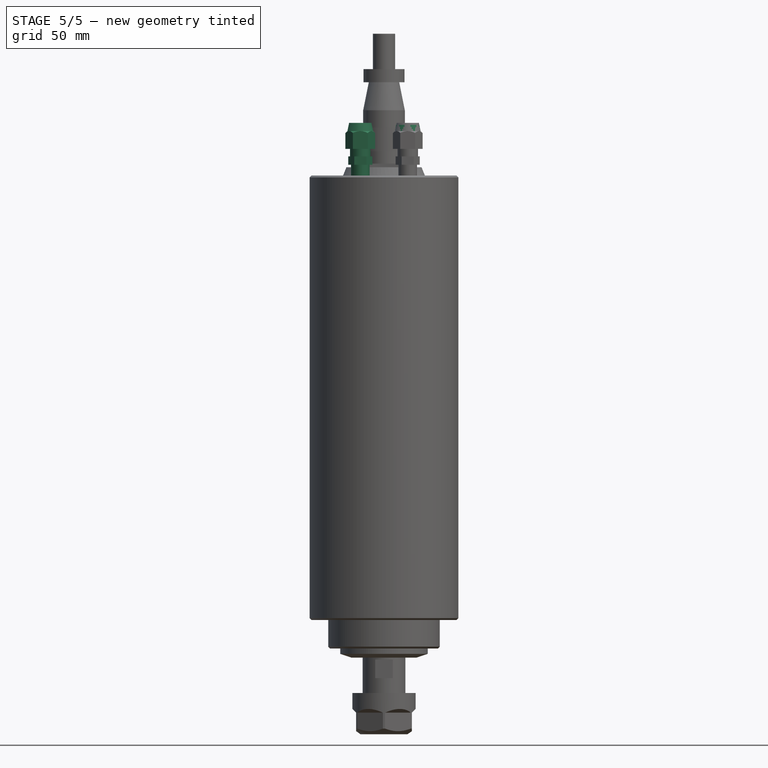
[diagram: stage 5 of 5 — front view after this stage's code; geometry added in this stage tinted green]
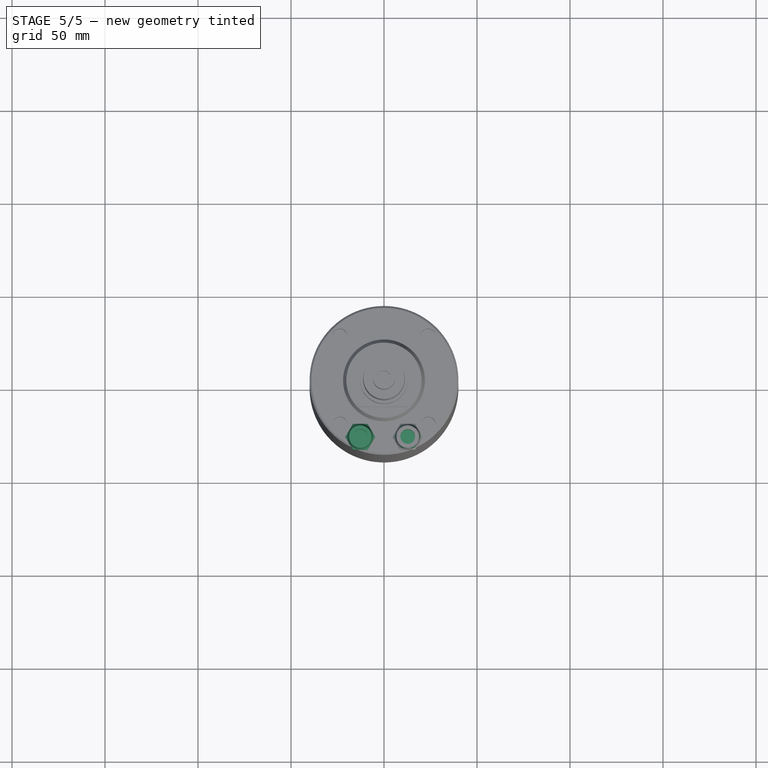
[diagram: stage 5 of 5 — top view after this stage's code; geometry added in this stage tinted green]
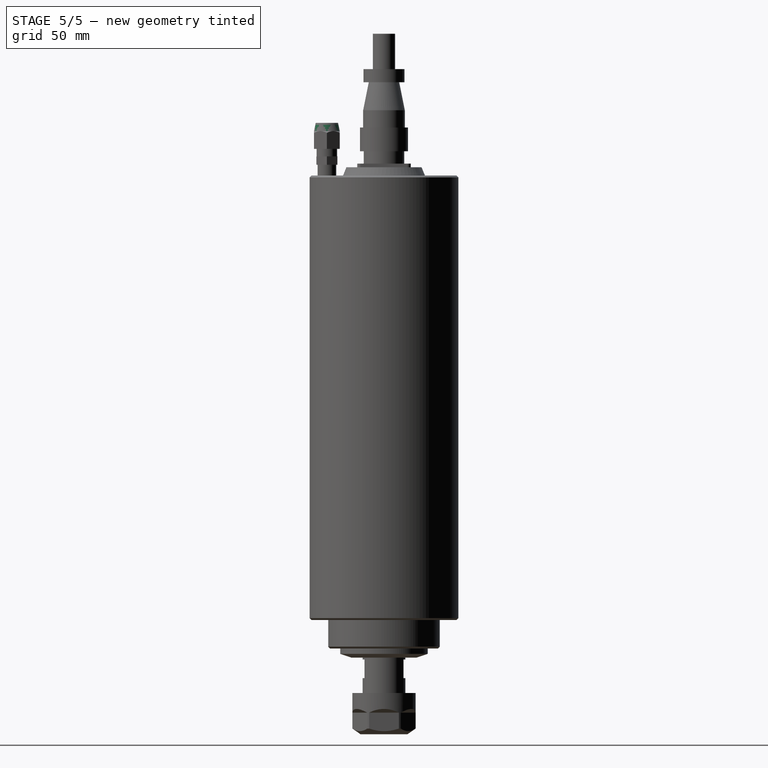
[diagram: stage 5 of 5 — right view after this stage's code; geometry added in this stage tinted green]
FEATURE [PartDesign::Plane] DatumPlane
  Length = 80
  MapMode = 13
  MinimumLength = 10
  MinimumWidth = 10
  Placement = pos=(15.4167,-30.7,18.9667) rot=(1,0,0;1.5708rad)
  ResizeMode = 0
  Support = -> [Pad005]
  TreeRank = 19
  Width = 376.6
FEATURE [Sketcher::SketchObject] Sketch012
  ExternalGeometry = -> [Pad005]
  FullyConstrained = true
  MapMode = 5
  Placement = pos=(15.4167,-30.7,18.9667) rot=(1,0,0;1.5708rad)
  Support = -> [DatumPlane]
  TreeRank = 20
  sketch-geometry (5):
    g0: LineSegment [constr] StartX=-2.66667 StartY=9.33333 StartZ=0 EndX=-2.66667 EndY=-3.66667 EndZ=0
    g1: LineSegment StartX=-8.66667 StartY=9.33333 StartZ=0 EndX=-17.1967 EndY=9.33333 EndZ=0
    g2: LineSegment StartX=-17.1967 StartY=9.33333 StartZ=0 EndX=-17.1967 EndY=-2.66667 EndZ=0
    g3: LineSegment StartX=-17.1967 StartY=-2.66667 StartZ=0 EndX=-9.59667 EndY=4.93333 EndZ=0
    g4: LineSegment StartX=-9.59667 StartY=4.93333 StartZ=0 EndX=-8.66667 EndY=9.33333 EndZ=0
  constraints (15):
    c: Vertical(g0)
    c: Symmetric(g-3,g-3,g0)
    c: DistanceY(g0,g0) = 13
    c: Horizontal(g1)
    c: Coincident(g2,g1)
    c: Vertical(g2)
    c: Coincident(g3,g2)
    c: Coincident(g4,g3)
    c: Coincident(g4,g1)
    c: PointOnObject(g1,g-3)
    c: DistanceX(g1,g0) = 6
    c: DistanceY(g3,g1) = 4.4
    c: Angle(g1,g3) = 0.785398
    c: DistanceX(g3,g1) = 0.93
    c: DistanceY(g2,g2) = 12
FEATURE [PartDesign::Groove] Groove001
  AddSubType = 1
  Angle = 360
  Axis = (0,-2.9e-15,-13)
  Base = (12.75,-30.7,28.3)
  BaseFeature = -> Pad005
  ClaimChildren = false
  Fit = 0
  FitJoin = 0
  InnerFit = 0
  InnerFitJoin = 0
  Linearize = true
  NewSolid = false
  Placement = pos=(0,0,0) rot=(1,0,0;1.5708rad)
  Profile = -> Sketch012
  ReferenceAxis = -> Sketch012 [Axis]
  Suppress = false
  TreeRank = 21
  _ProfileBasedVersion = 1
FEATURE [Sketcher::SketchObject] Sketch013
  ExternalGeometry = -> [Groove001]
  FullyConstrained = true
  MapMode = 5
  Placement = pos=(0,0,28.3) rot=(0,0,1;3.14159rad)
  Support = -> [Groove001]
  TreeRank = 22
  sketch-geometry (1):
    g0: Circle CenterX=-12.75 CenterY=30.7 CenterZ=0 NormalX=0 NormalY=0 NormalZ=1 AngleXU=0 Radius=3.95
  constraints (2):
    c: Coincident(g0,g-3)
    c: Diameter(g0) = 7.9
FEATURE [PartDesign::Pocket] Pocket003
  AddSubType = 1
  BaseFeature = -> Groove001
  CheckUpToFaceLimits = true
  ClaimChildren = false
  Fit = 0
  FitJoin = 0
  InnerFit = 0
  InnerFitJoin = 0
  InnerTaperAngle = 0
  InnerTaperAngleRev = 0
  Length = 12
  Length2 = 100
  Linearize = true
  NewSolid = false
  Placement = pos=(0,0,0) rot=(1,0,0;1.5708rad)
  Profile = -> Sketch013
  Suppress = false
  TreeRank = 23
  Type = 0
  _ProfileBasedVersion = 1
  _Version = 1
FEATURE [PartDesign::Mirrored] Mirrored
  AddSubType = 0
  BaseFeature = -> Pocket003
  CopyShape = false
  MirrorPlane = -> YZ_Plane
  NewSolid = false
  OriginalSubs = -> [Pad002,Pad003,Pad004,Pad005,Groove001,Pocket003]
  Originals = -> [Pad002,Pad003,Pad004,Pad005,Groove001,Pocket003]
  ParallelTransform = true
  Placement = pos=(0,0,0) rot=(1,0,0;1.5708rad)
  SubTransform = true
  Suppress = false
  TreeRank = 24
  _Version = 3
FEATURE [PartDesign::Chamfer] Chamfer002
  AddSubType = 0
  Angle = 45
  Base = -> Mirrored [Edge68,Edge104,Edge75]
  BaseFeature = -> Mirrored
  ChamferType = 0
  FlipDirection = false
  NewSolid = false
  Placement = pos=(0,0,0) rot=(1,0,0;1.5708rad)
  Size = 1
  Size2 = 1
  SupportTransform = false
  Suppress = false
  TreeRank = 26
FEATURE [PartDesign::Body] Body
  AutoGroupSolids = false
  ExportMode = 0
  Group = -> [Sketch,Revolution,Chamfer,Sketch001,Pocket,PolarPattern,Sketch002,Groove,Sketch003,Pad,Sketch004,Pad001,Sketch005,Revolution001,Sketch006,Pocket001,Sketch007,Pocket002,Sketch008,Pad002,Sketch009,Pad003,Sketch010,Pad004,Sketch011,Pad005,DatumPlane,Sketch012,Groove001,Sketch013,Pocket003,Mirrored,Chamfer002]
  Origin = -> Origin
  Tip = -> Chamfer002
  TreeRank = 0
  _ExportChildren = -> [Revolution,Chamfer,Pocket,PolarPattern,Groove,Pad,Pad001,Revolution001,Pocket001,Pocket002,Pad002,Pad003,Pad004,Pad005,DatumPlane,Groove001,Pocket003,Mirrored,Chamfer002]
  _GroupVersion = 1
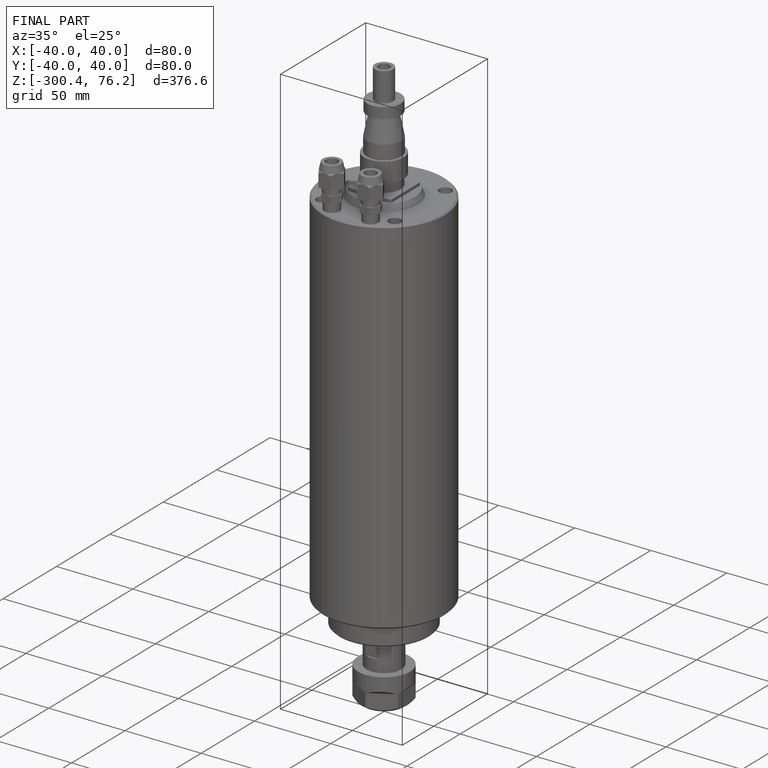
[diagram: finished part — iso view with bounding-box wireframe]
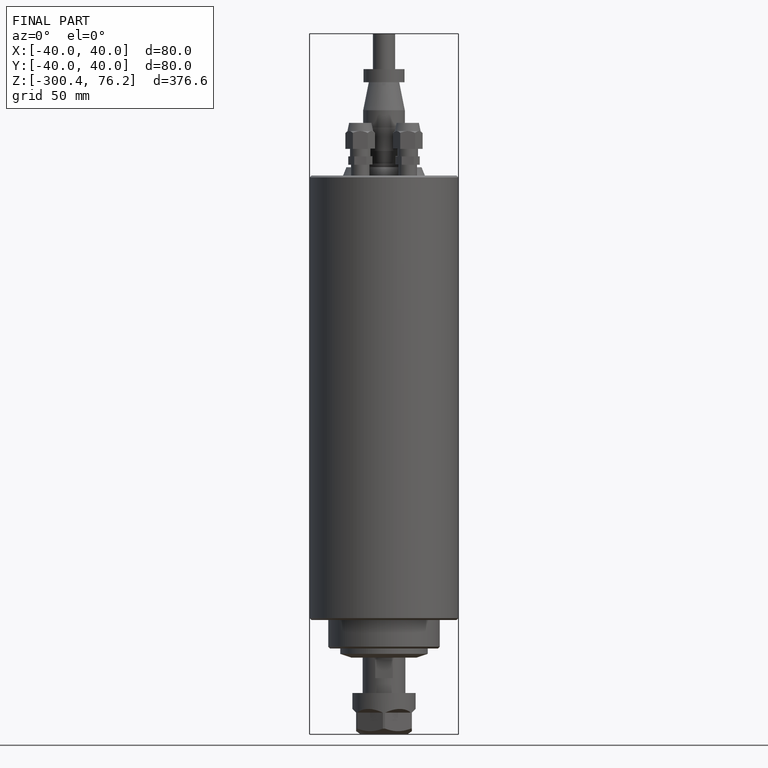
[diagram: finished part — front view with bounding-box wireframe]
